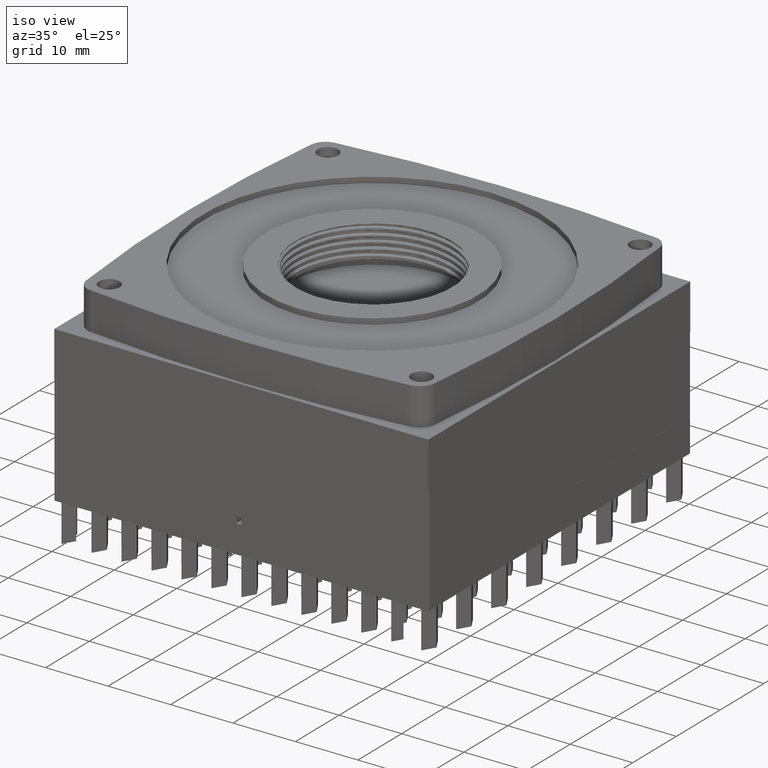
[diagram: clean part render]
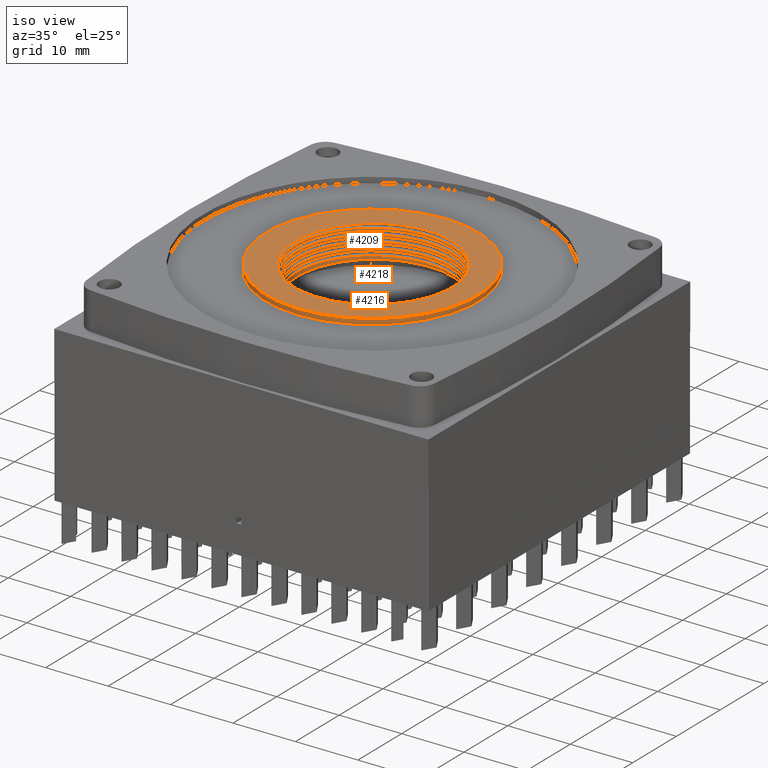
[diagram: same view with one multi-face feature highlighted, each face labeled with its STEP entity id]
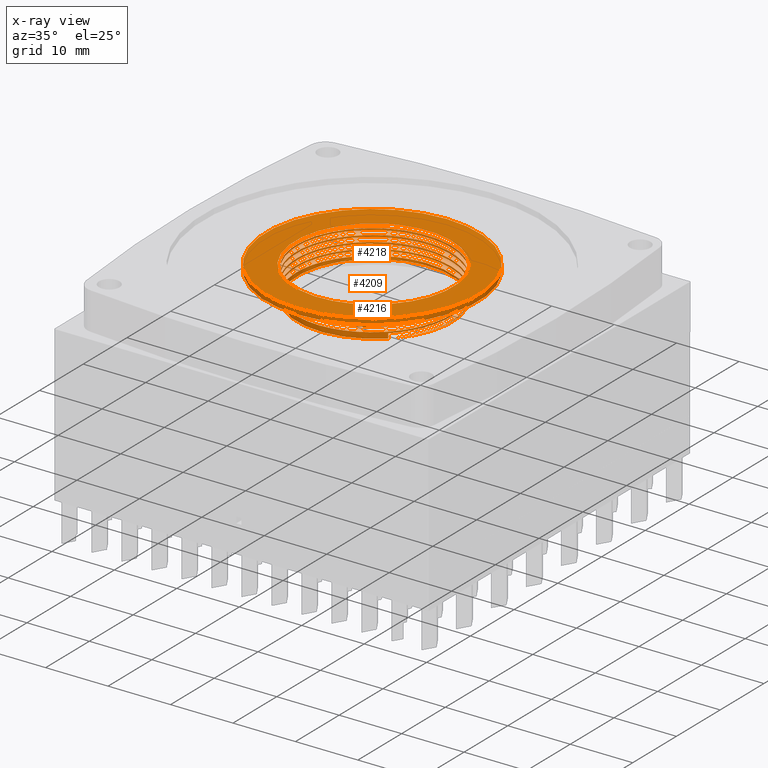
[diagram: x-ray of the same camera — body ghosted, the whole feature saturated]
A machine part, iso view. The highlighted faces form ONE feature: a stepped (counterbored) hole: 2 coaxial cylindrical walls of radii 12.4 -> 17 mm joined by 1 annular planar shoulder face(s). The faces share edges in the B-rep.
The next image is the same camera in x-ray: the body ghosted and the whole hole feature saturated, so the bore chain is visible through the body.
Their STEP definitions:
[1] entity #4216 (Cylinder):
#3198=FACE_BOUND('',#9872,.T.);
#3199=FACE_BOUND('',#9873,.T.);
#4216=ADVANCED_FACE('',(#3198,#3199),#6961,.T.);
#6961=CYLINDRICAL_SURFACE('',#51819,17.);
#9872=EDGE_LOOP('',(#25205));
#9873=EDGE_LOOP('',(#25206));
#25205=ORIENTED_EDGE('',*,*,#43849,.F.);
#25206=ORIENTED_EDGE('',*,*,#43850,.F.);
#39130=VERTEX_POINT('',#69231);
#39131=VERTEX_POINT('',#69233);
#43849=EDGE_CURVE('',#39130,#39130,#50805,.T.);
#43850=EDGE_CURVE('',#39131,#39131,#50806,.T.);
#50805=CIRCLE('',#51817,17.);
#50806=CIRCLE('',#51818,17.);
#51817=AXIS2_PLACEMENT_3D('',#69230,#55622,#55623);
#51818=AXIS2_PLACEMENT_3D('',#69232,#55624,#55625);
#51819=AXIS2_PLACEMENT_3D('',#69234,#55626,#55627);
#55622=DIRECTION('',(0.,0.,1.));
#55623=DIRECTION('',(2.04085114820801E-016,-1.,0.));
#55624=DIRECTION('',(0.,0.,-1.));
#55625=DIRECTION('',(2.04085114820801E-016,-1.,0.));
#55626=DIRECTION('',(0.,0.,-1.));
#55627=DIRECTION('',(-1.,0.,0.));
#69230=CARTESIAN_POINT('',(30.00005,30.,-5.1));
#69231=CARTESIAN_POINT('',(30.00005,13.,-5.1));
#69232=CARTESIAN_POINT('',(30.00005,30.,-6.));
#69233=CARTESIAN_POINT('',(30.00005,13.,-6.));
#69234=CARTESIAN_POINT('',(30.00005,30.,-5.1));
[2] entity #4209 (Cylinder):
#4209=ADVANCED_FACE('',(#7394),#6955,.F.);
#6955=CYLINDRICAL_SURFACE('',#51792,12.4);
#7394=FACE_OUTER_BOUND('',#9859,.T.);
#9859=EDGE_LOOP('',(#25169,#25170,#25171,#25172,#25173));
#13335=LINE('',#69174,#19216);
#19216=VECTOR('',#55563,1.);
#25099=B_SPLINE_CURVE_WITH_KNOTS('',3,(#68980,#68981,#68982,#68983,#68984,
#68985,#68986,#68987,#68988,#68989,#68990,#68991,#68992,#68993,#68994,#68995,
#68996,#68997,#68998,#68999,#69000,#69001,#69002,#69003,#69004,#69005,#69006,
#69007,#69008,#69009,#69010,#69011,#69012,#69013,#69014,#69015,#69016,#69017,
#69018,#69019,#69020,#69021,#69022,#69023,#69024,#69025,#69026,#69027,#69028,
#69029,#69030,#69031,#69032,#69033,#69034,#69035,#69036,#69037,#69038,#69039,
#69040,#69041,#69042,#69043,#69044,#69045,#69046,#69047,#69048,#69049,#69050,
#69051,#69052,#69053,#69054,#69055,#69056,#69057,#69058,#69059,#69060,#69061,
#69062,#69063,#69064,#69065,#69066,#69067,#69068,#69069,#69070,#69071,#69072,
#69073,#69074,#69075,#69076,#69077,#69078,#69079,#69080,#69081,#69082,#69083,
#69084,#69085,#69086,#69087,#69088,#69089,#69090,#69091,#69092,#69093,#69094,
#69095,#69096,#69097,#69098,#69099,#69100,#69101),.UNSPECIFIED.,.F.,.F.,
(4,2,2,2,2,2,2,2,2,2,2,2,2,2,2,2,2,2,2,2,2,2,2,2,2,2,2,2,2,2,2,2,2,2,2,
2,2,2,2,2,2,2,2,2,2,2,2,2,2,2,2,2,2,2,2,2,2,2,2,2,4),(0.,0.03125,0.0624999999999999,
0.0781249999999999,0.0937499999999999,0.109375,0.125,0.140625,0.15625,0.171875,
0.1875,0.203125,0.21875,0.234375,0.25,0.265625,0.28125,0.296875,0.3125,
0.328125,0.34375,0.359375,0.375,0.390625,0.40625,0.421875,0.4375,0.453125,
0.46875,0.484375000000001,0.500000000000001,0.515625000000001,0.531250000000001,
0.546875000000001,0.5625,0.578125,0.59375,0.609375,0.625,0.65625,0.671875,
0.6875,0.703125,0.71875,0.734375,0.75,0.765625,0.78125,0.796875,0.8125,
0.84375,0.859375,0.875,0.890625,0.90625,0.921875,0.9375,0.953125,0.96875,
0.984375,1.),.UNSPECIFIED.);
#25100=B_SPLINE_CURVE_WITH_KNOTS('',3,(#69105,#69106,#69107,#69108,#69109,
#69110,#69111,#69112,#69113,#69114,#69115,#69116,#69117,#69118,#69119,#69120,
#69121,#69122,#69123,#69124,#69125,#69126,#69127,#69128,#69129,#69130,#69131,
#69132,#69133,#69134,#69135,#69136,#69137,#69138,#69139,#69140,#69141,#69142,
#69143,#69144,#69145,#69146,#69147,#69148,#69149,#69150,#69151,#69152,#69153,
#69154,#69155,#69156,#69157,#69158,#69159,#69160,#69161,#69162,#69163,#69164,
#69165,#69166,#69167,#69168,#69169,#69170,#69171,#69172),.UNSPECIFIED.,
 .F.,.F.,(4,2,2,2,2,2,2,2,2,2,2,2,2,2,2,2,2,2,2,2,2,2,2,2,2,2,2,2,2,2,2,
2,2,4),(0.,0.03125,0.0624999999999999,0.0937499999999999,0.125,0.15625,
0.1875,0.21875,0.249999999999999,0.265624999999999,0.281249999999999,0.312499999999999,
0.343749999999999,0.374999999999999,0.406249999999999,0.437499999999999,
0.468749999999999,0.499999999999999,0.531249999999999,0.562499999999999,
0.593749999999999,0.624999999999999,0.656249999999999,0.687499999999999,
0.718749999999999,0.749999999999999,0.78125,0.8125,0.84375,0.875,0.90625,
0.9375,0.96875,1.),.UNSPECIFIED.);
#25169=ORIENTED_EDGE('',*,*,#43818,.F.);
#25170=ORIENTED_EDGE('',*,*,#43819,.T.);
#25171=ORIENTED_EDGE('',*,*,#43820,.F.);
#25172=ORIENTED_EDGE('',*,*,#43821,.T.);
#25173=ORIENTED_EDGE('',*,*,#43822,.T.);
#39103=VERTEX_POINT('',#68978);
#39104=VERTEX_POINT('',#68979);
#39105=VERTEX_POINT('',#69102);
#39106=VERTEX_POINT('',#69104);
#39107=VERTEX_POINT('',#69173);
#43818=EDGE_CURVE('',#39103,#39104,#50785,.T.);
#43819=EDGE_CURVE('',#39103,#39105,#25099,.T.);
#43820=EDGE_CURVE('',#39106,#39105,#50786,.T.);
#43821=EDGE_CURVE('',#39106,#39107,#25100,.T.);
#43822=EDGE_CURVE('',#39107,#39104,#13335,.T.);
#50785=CIRCLE('',#51790,12.4);
#50786=CIRCLE('',#51791,12.4);
#51790=AXIS2_PLACEMENT_3D('',#68977,#55559,#55560);
#51791=AXIS2_PLACEMENT_3D('',#69103,#55561,#55562);
#51792=AXIS2_PLACEMENT_3D('',#69175,#55564,#55565);
#55559=DIRECTION('',(0.,0.,-1.));
#55560=DIRECTION('',(1.,0.,0.));
#55561=DIRECTION('',(0.,0.,1.));
#55562=DIRECTION('',(1.,0.,0.));
#55563=DIRECTION('',(0.,0.,1.));
#55564=DIRECTION('',(0.,0.,1.));
#55565=DIRECTION('',(1.,0.,0.));
#68977=CARTESIAN_POINT('',(30.39645,30.,-1.));
#68978=CARTESIAN_POINT('',(39.1062380168679,38.8260745918684,-1.));
#68979=CARTESIAN_POINT('',(38.8870097555111,39.0371674233742,-1.));
#68980=CARTESIAN_POINT('',(39.106238016868,38.8260745918683,-1.));
#68981=CARTESIAN_POINT('',(42.0192839937798,35.9514089997977,-1.05192333250722));
#68982=CARTESIAN_POINT('',(43.3458151352233,31.6356991957712,-1.09818717888937));
#68983=CARTESIAN_POINT('',(41.7922018826572,23.636164026839,-1.21971024211015));
#68984=CARTESIAN_POINT('',(38.9776284102888,20.1585472320808,-1.26626202338458));
#68985=CARTESIAN_POINT('',(33.3228099463045,17.7779248350469,-1.34405553886286));
#68986=CARTESIAN_POINT('',(31.2770728349958,17.4640252871194,-1.36088154248505));
#68987=CARTESIAN_POINT('',(27.2124838421619,17.8431698997955,-1.42055530065563));
#68988=CARTESIAN_POINT('',(25.2473044679649,18.5405157533472,-1.44996822510237));
#68989=CARTESIAN_POINT('',(21.8789609335128,20.7649656789143,-1.49480626467522));
#68990=CARTESIAN_POINT('',(20.4480151202455,22.3276149184282,-1.52432418091687));
#68991=CARTESIAN_POINT('',(18.5278551531877,25.8801327983946,-1.58005155846262));
#68992=CARTESIAN_POINT('',(18.0080886167124,27.9006842343407,-1.59803216159476));
#68993=CARTESIAN_POINT('',(17.9852055161875,31.9594986118677,-1.64960813993186));
#68994=CARTESIAN_POINT('',(18.4784836276328,33.9851391737294,-1.68408202968663));
#68995=CARTESIAN_POINT('',(20.3826158978188,37.5922581134246,-1.73281141062205));
#68996=CARTESIAN_POINT('',(21.7795197243817,39.1437574126376,-1.75523747311775));
#68997=CARTESIAN_POINT('',(25.1357115786105,41.4098386604609,-1.81436710586594));
#68998=CARTESIAN_POINT('',(27.0974783036548,42.1228813462768,-1.83734333060549));
#68999=CARTESIAN_POINT('',(31.119097320848,42.5429361490388,-1.88174572459788));
#69000=CARTESIAN_POINT('',(33.2120765139354,42.2439213585939,-1.91680193757236));
#69001=CARTESIAN_POINT('',(36.9529252649203,40.7169956145318,-1.96963026374539));
#69002=CARTESIAN_POINT('',(38.6615639479343,39.4617424417295,-1.987958299122));
#69003=CARTESIAN_POINT('',(41.2363192664346,36.3508985893785,-2.04627784270394));
#69004=CARTESIAN_POINT('',(42.148920249827,34.4408630956912,-2.07495351526678));
#69005=CARTESIAN_POINT('',(42.9507689247952,30.4805188261344,-2.11854374155977));
#69006=CARTESIAN_POINT('',(42.8581851457997,28.3957054959093,-2.14799835962846));
#69007=CARTESIAN_POINT('',(41.6986976274062,24.5111201262275,-2.20548039817715));
#69008=CARTESIAN_POINT('',(40.6360892904812,22.7151919411691,-2.22440507886243));
#69009=CARTESIAN_POINT('',(37.7638004888454,19.8195880226936,-2.2764115931904));
#69010=CARTESIAN_POINT('',(35.9766881424372,18.7425638376474,-2.30977735020438));
#69011=CARTESIAN_POINT('',(32.1014606510897,17.5516320204042,-2.35660188469822));
#69012=CARTESIAN_POINT('',(30.0173726583458,17.4422272547514,-2.37879405377946));
#69013=CARTESIAN_POINT('',(26.0508990556591,18.2119745952767,-2.4390500686795));
#69014=CARTESIAN_POINT('',(24.1334624425527,19.1090878339114,-2.46344803273869));
#69015=CARTESIAN_POINT('',(21.0017860613854,21.6587009144443,-2.50861409945409));
#69016=CARTESIAN_POINT('',(19.7469532669035,23.3291405954021,-2.54260039265908));
#69017=CARTESIAN_POINT('',(18.1722040775725,27.087963342923,-2.59419391709152));
#69018=CARTESIAN_POINT('',(17.8589228531942,29.1412827371226,-2.61116169364418));
#69019=CARTESIAN_POINT('',(18.2452722786515,33.2055985835191,-2.6709147953577));
#69020=CARTESIAN_POINT('',(18.9445954502962,35.1657217623279,-2.70018222745976));
#69021=CARTESIAN_POINT('',(21.1726379828697,38.5294164997379,-2.74497174768878));
#69022=CARTESIAN_POINT('',(22.7049373270776,39.9380815127881,-2.77402389292097));
#69023=CARTESIAN_POINT('',(26.2955714457948,41.8788731130611,-2.83034966687348));
#69024=CARTESIAN_POINT('',(28.3094294120775,42.3917090395988,-2.84810002185425));
#69025=CARTESIAN_POINT('',(32.383759181919,42.4080905086942,-2.90005078195512));
#69026=CARTESIAN_POINT('',(34.411915829171,41.9043496880052,-2.93450173519589));
#69027=CARTESIAN_POINT('',(37.9814266845353,40.0152701418686,-2.98270296330489));
#69028=CARTESIAN_POINT('',(39.5552246054624,38.5999437661633,-3.00557856804444));
#69029=CARTESIAN_POINT('',(41.8115376626584,35.2476622136584,-3.06455528167655));
#69030=CARTESIAN_POINT('',(42.5299597343882,33.2613668938105,-3.08770536549946));
#69031=CARTESIAN_POINT('',(42.9371895129411,29.2329113746806,-3.13229063527832));
#69032=CARTESIAN_POINT('',(42.6334556143691,27.1499146169295,-3.16732680687811));
#69033=CARTESIAN_POINT('',(41.0893133960334,23.4022757339624,-3.22017375951116));
#69034=CARTESIAN_POINT('',(39.8488272928097,21.7238398340011,-3.23814269038864));
#69035=CARTESIAN_POINT('',(36.7326062860103,19.1512495144305,-3.29654533020678));
#69036=CARTESIAN_POINT('',(34.8507288724674,18.2490194047476,-3.32481305191368));
#69037=CARTESIAN_POINT('',(30.8492095535431,17.4412917061354,-3.36884205322087));
#69038=CARTESIAN_POINT('',(28.7743383631108,17.5389246468469,-3.39828998425261));
#69039=CARTESIAN_POINT('',(24.8729795239462,18.712798441613,-3.45596389779514));
#69040=CARTESIAN_POINT('',(23.0856833763778,19.7832075020616,-3.47479342830082));
#69041=CARTESIAN_POINT('',(20.2239633970378,22.6277090478229,-3.5263476205904));
#69042=CARTESIAN_POINT('',(19.1285363118328,24.4444882942313,-3.56011487046309));
#69043=CARTESIAN_POINT('',(17.9486027590894,28.3027409555776,-3.60665647009624));
#69044=CARTESIAN_POINT('',(17.8353112812934,30.3808206784443,-3.62882244054063));
#69045=CARTESIAN_POINT('',(18.6202919577314,34.3874060745769,-3.68968398094425));
#69046=CARTESIAN_POINT('',(19.5010243589048,36.262718171745,-3.71338816921219));
#69047=CARTESIAN_POINT('',(22.0853455982663,39.4264246892882,-3.75912869988844));
#69048=CARTESIAN_POINT('',(23.7604895941291,40.6677400935687,-3.79313425122073));
#69049=CARTESIAN_POINT('',(27.4875732522155,42.2219100503325,-3.84418189090674));
#69050=CARTESIAN_POINT('',(29.5500022640636,42.5364555909467,-3.86134099934501));
#69051=CARTESIAN_POINT('',(33.5909268917546,42.1521401383253,-3.92075236530364));
#69052=CARTESIAN_POINT('',(35.5695155725488,41.4502644539155,-3.95027305029885));
#69053=CARTESIAN_POINT('',(38.9464683029603,39.2068643142784,-3.99525309398047));
#69054=CARTESIAN_POINT('',(40.3582966015234,37.6564199493569,-4.02465197532736));
#69055=CARTESIAN_POINT('',(42.2762478076601,34.0901782604561,-4.08043893019678));
#69056=CARTESIAN_POINT('',(42.7917786830368,32.0734447590444,-4.09817574342636));
#69057=CARTESIAN_POINT('',(42.8056969329359,25.9374914308136,-4.17670744782093));
#69058=CARTESIAN_POINT('',(40.6978464520902,21.9869432722972,-4.22563868796366));
#69059=CARTESIAN_POINT('',(35.6331061140866,18.5772422555265,-4.31475201587606));
#69060=CARTESIAN_POINT('',(33.6684356142597,17.8680726731944,-4.33759201429051));
#69061=CARTESIAN_POINT('',(29.6248866291021,17.4582999363123,-4.38233599386976));
#69062=CARTESIAN_POINT('',(27.5527518616611,17.7623988417349,-4.41722593078579));
#69063=CARTESIAN_POINT('',(23.8136393008777,19.2989671288102,-4.46997420301289));
#69064=CARTESIAN_POINT('',(22.1139497398053,20.5526527429472,-4.4882430765329));
#69065=CARTESIAN_POINT('',(19.5408459277578,23.6748090161493,-4.54674468935885));
#69066=CARTESIAN_POINT('',(18.6433810871056,25.5593562910441,-4.57495919297968));
#69067=CARTESIAN_POINT('',(17.841408252846,29.5257931375915,-4.61860994692324));
#69068=CARTESIAN_POINT('',(17.9335953937511,31.6116278210335,-4.64812671817953));
#69069=CARTESIAN_POINT('',(19.1064281027238,35.5186497197279,-4.70590088348335));
#69070=CARTESIAN_POINT('',(20.1743567189316,37.3072458852602,-4.72468145604278));
#69071=CARTESIAN_POINT('',(23.0404787015067,40.1870859292665,-4.77665936174455));
#69072=CARTESIAN_POINT('',(24.8277341265173,41.2615934752526,-4.80992488540659));
#69073=CARTESIAN_POINT('',(28.6868424522321,42.4463378595491,-4.85653801412516));
#69074=CARTESIAN_POINT('',(30.8040583694231,42.5564670796174,-4.87922970496029));
#69075=CARTESIAN_POINT('',(34.7639001986585,41.7794901785509,-4.93938049376809));
#69076=CARTESIAN_POINT('',(36.6506921307923,40.9005967233305,-4.96328858234198));
#69077=CARTESIAN_POINT('',(39.8186190409479,38.316326359581,-5.00904430556626));
#69078=CARTESIAN_POINT('',(41.0540720556514,36.6602132623388,-5.04280200253696));
#69079=CARTESIAN_POINT('',(43.4156503999314,30.9969028388936,-5.12036919960744));
#69080=CARTESIAN_POINT('',(42.9800796367669,26.5397454393216,-5.17746855759616));
#69081=CARTESIAN_POINT('',(39.6069439314868,21.4520718502641,-5.24522044431413));
#69082=CARTESIAN_POINT('',(38.0627867824931,20.044364845695,-5.27448262996076));
#69083=CARTESIAN_POINT('',(34.4850152398999,18.1184586325122,-5.33047834551898));
#69084=CARTESIAN_POINT('',(32.4538764353382,17.6059169807392,-5.34841592587341));
#69085=CARTESIAN_POINT('',(28.4109749874374,17.5941873946264,-5.40008926127096));
#69086=CARTESIAN_POINT('',(26.361565207357,18.1015514602522,-5.43478203883545));
#69087=CARTESIAN_POINT('',(22.7887629122932,20.0011765632917,-5.48299134260627));
#69088=CARTESIAN_POINT('',(21.2383389707073,21.39876194869,-5.50555825587331));
#69089=CARTESIAN_POINT('',(18.97951980761,24.7553838441454,-5.56460641151356));
#69090=CARTESIAN_POINT('',(18.2660536703844,26.7176133669441,-5.58748081161375));
#69091=CARTESIAN_POINT('',(17.8538008952743,30.7762284187902,-5.63238373053351));
#69092=CARTESIAN_POINT('',(18.155478828747,32.8367663629578,-5.66713091698812));
#69093=CARTESIAN_POINT('',(19.7010269282316,36.5951909698918,-5.72014607560079));
#69094=CARTESIAN_POINT('',(20.9408859490018,38.2719689819509,-5.73807872966594));
#69095=CARTESIAN_POINT('',(24.0521014055142,40.8435420076898,-5.79639601468566));
#69096=CARTESIAN_POINT('',(25.9659102343953,41.7559041196683,-5.82507502302889));
#69097=CARTESIAN_POINT('',(29.9215066021483,42.5540986555896,-5.86859719446792));
#69098=CARTESIAN_POINT('',(32.0001128486788,42.4647022704273,-5.89803350703133));
#69099=CARTESIAN_POINT('',(35.9170239195626,41.28998675027,-5.95581554176364));
#69100=CARTESIAN_POINT('',(37.6917775214695,40.2335386554555,-5.97412521089449));
#69101=CARTESIAN_POINT('',(39.1423492365135,38.7902927451111,-6.));
#69102=CARTESIAN_POINT('',(39.1423492365135,38.7902927451111,-6.));
#69103=CARTESIAN_POINT('',(30.39645,30.,-6.));
#69104=CARTESIAN_POINT('',(39.1062380168679,21.1739254081316,-6.));
#69105=CARTESIAN_POINT('',(39.1062380168647,21.1739254081285,-6.00000000000002));
#69106=CARTESIAN_POINT('',(41.5847094759408,23.6197421514271,-5.95582270286881));
#69107=CARTESIAN_POINT('',(42.9384816752776,27.0819615656183,-5.91618066647406));
#69108=CARTESIAN_POINT('',(42.6299289678624,34.0198879575261,-5.8196034956956));
#69109=CARTESIAN_POINT('',(40.9739306419579,37.3444509524674,-5.78295124588053));
#69110=CARTESIAN_POINT('',(35.619724524444,41.7703636208269,-5.68258980224309));
#69111=CARTESIAN_POINT('',(32.0009989907755,42.7734981783447,-5.651047925638));
#69112=CARTESIAN_POINT('',(25.1543453018634,41.7582809759654,-5.54759686783825));
#69113=CARTESIAN_POINT('',(21.9998367668724,39.7596576097077,-5.51460352185017));
#69114=CARTESIAN_POINT('',(18.1578643745296,33.9963799035487,-5.4136551894466));
#69115=CARTESIAN_POINT('',(17.5335124663792,30.3093992956757,-5.38121584889278));
#69116=CARTESIAN_POINT('',(19.2066122908278,23.648746426068,-5.28100055980452));
#69117=CARTESIAN_POINT('',(21.5403010819263,20.6663580032278,-5.24383929904139));
#69118=CARTESIAN_POINT('',(27.6022272106594,17.4405188966049,-5.14956893891139));
#69119=CARTESIAN_POINT('',(31.380248997577,17.1711978783002,-5.11003315307814));
#69120=CARTESIAN_POINT('',(37.8380201175798,19.5038550633813,-5.01703414310029));
#69121=CARTESIAN_POINT('',(40.576856027214,22.1308884483581,-4.97335112298333));
#69122=CARTESIAN_POINT('',(42.5254146397343,26.9017565233096,-4.90862205219174));
#69123=CARTESIAN_POINT('',(42.8440877054528,28.64660872633,-4.89388108375338));
#69124=CARTESIAN_POINT('',(42.7370253783175,32.1179121128883,-4.84655150325559));
#69125=CARTESIAN_POINT('',(42.3080452729578,33.8502445009459,-4.81810646506787));
#69126=CARTESIAN_POINT('',(40.0653159759227,38.4896978388458,-4.7544533777861));
#69127=CARTESIAN_POINT('',(37.2175734484058,40.917266957249,-4.70467211755784));
#69128=CARTESIAN_POINT('',(30.5844594853844,42.8716391865076,-4.62563567251138));
#69129=CARTESIAN_POINT('',(26.8720597416096,42.3805491614469,-4.57157488792356));
#69130=CARTESIAN_POINT('',(20.9772894305261,38.7737528115915,-4.49325854242297));
#69131=CARTESIAN_POINT('',(18.8493236535823,35.687611022619,-4.43852794720031));
#69132=CARTESIAN_POINT('',(17.5716425627496,28.900290855636,-4.36431708690827));
#69133=CARTESIAN_POINT('',(18.4216506779629,25.2660878095435,-4.3068573552611));
#69134=CARTESIAN_POINT('',(22.6190577133684,19.7375484093781,-4.23040613870512));
#69135=CARTESIAN_POINT('',(25.8995763775506,17.9424069159449,-4.17643439779871));
#69136=CARTESIAN_POINT('',(32.7580294849593,17.3496891068578,-4.09957262709331));
#69137=CARTESIAN_POINT('',(36.3228287697999,18.5765639309243,-4.04598665862915));
#69138=CARTESIAN_POINT('',(41.3644467286646,23.267994005692,-3.96300085913918));
#69139=CARTESIAN_POINT('',(42.8443688201434,26.7325466865479,-3.91858567907782));
#69140=CARTESIAN_POINT('',(42.7460034555288,33.6215277932811,-3.82736424895295));
#69141=CARTESIAN_POINT('',(41.1795626027317,37.0237779439112,-3.78693113805541));
#69142=CARTESIAN_POINT('',(36.0159577441193,41.577137242097,-3.68991503881059));
#69143=CARTESIAN_POINT('',(32.4176428673036,42.7088251835164,-3.65653825098908));
#69144=CARTESIAN_POINT('',(25.5797987261804,41.9331189828322,-3.55474713926631));
#69145=CARTESIAN_POINT('',(22.3249262404452,40.0220516216292,-3.5208363212516));
#69146=CARTESIAN_POINT('',(18.3155345960788,34.4319857300038,-3.41984590239172));
#69147=CARTESIAN_POINT('',(17.541228342401,30.7405765050396,-3.38809886313108));
#69148=CARTESIAN_POINT('',(19.0245624854041,23.959689430071,-3.28532826057025));
#69149=CARTESIAN_POINT('',(21.237862542089,20.9551440621666,-3.25058229858826));
#69150=CARTESIAN_POINT('',(27.2325325401386,17.5228701430357,-3.15349475636244));
#69151=CARTESIAN_POINT('',(30.9601722270022,17.1397515938822,-3.11685280360281));
#69152=CARTESIAN_POINT('',(37.5307103116519,19.2852390777087,-3.02077074255107));
#69153=CARTESIAN_POINT('',(40.3120902664885,21.7902672692984,-2.97990840330512));
#69154=CARTESIAN_POINT('',(43.1297028829648,28.1068797126355,-2.89054247390467));
#69155=CARTESIAN_POINT('',(43.1299617671012,31.8484488048874,-2.84635019392189));
#69156=CARTESIAN_POINT('',(40.363865933343,38.1369345898155,-2.75860818808649));
#69157=CARTESIAN_POINT('',(37.570862360828,40.6833780161185,-2.71065781502171));
#69158=CARTESIAN_POINT('',(31.0378318846501,42.8528357896819,-2.62946386362002));
#69159=CARTESIAN_POINT('',(27.285622295726,42.4875695213996,-2.57734283114123));
#69160=CARTESIAN_POINT('',(21.2922133213077,39.0955767302475,-2.49719518890084));
#69161=CARTESIAN_POINT('',(19.0331769080719,36.0406597579733,-2.44310205492779));
#69162=CARTESIAN_POINT('',(17.5454680692816,29.3174979196469,-2.36823497693691));
#69163=CARTESIAN_POINT('',(18.285877973206,25.6460509505366,-2.31105787402353));
#69164=CARTESIAN_POINT('',(22.2662095452603,20.0239277624105,-2.23529095462407));
#69165=CARTESIAN_POINT('',(25.5046329540061,18.0969417393803,-2.17990155067115));
#69166=CARTESIAN_POINT('',(32.341391193996,17.2787628856671,-2.10508146475876));
#69167=CARTESIAN_POINT('',(35.9452333501591,18.3890573770476,-2.04895964456302));
#69168=CARTESIAN_POINT('',(41.1354607124646,22.9093981794162,-1.96963596560849));
#69169=CARTESIAN_POINT('',(42.7279028002005,26.2930836192829,-1.92118164447042));
#69170=CARTESIAN_POINT('',(42.8604738772802,33.2332748110532,-1.83536194888224));
#69171=CARTESIAN_POINT('',(41.4247006488471,36.652967246319,-1.79106444536181));
#69172=CARTESIAN_POINT('',(38.8870097555111,39.0371674233742,-1.74383775862185));
#69173=CARTESIAN_POINT('',(38.8870097555111,39.0371674233742,-1.74383775862185));
#69174=CARTESIAN_POINT('',(38.8870097555111,39.0371674233742,-6.));
#69175=CARTESIAN_POINT('',(30.39645,30.,-6.));
[3] entity #4218 (Plane):
#945=PLANE('',#51822);
#3202=FACE_BOUND('',#9876,.T.);
#3203=FACE_BOUND('',#9877,.T.);
#4218=ADVANCED_FACE('',(#3202,#3203),#945,.T.);
#9876=EDGE_LOOP('',(#25209,#25210,#25211,#25212));
#9877=EDGE_LOOP('',(#25213));
#25101=B_SPLINE_CURVE_WITH_KNOTS('',3,(#69236,#69237,#69238,#69239,#69240,
#69241),.UNSPECIFIED.,.F.,.F.,(4,2,4),(0.,0.5,1.),.UNSPECIFIED.);
#25102=B_SPLINE_CURVE_WITH_KNOTS('',3,(#69245,#69246,#69247,#69248,#69249,
#69250),.UNSPECIFIED.,.F.,.F.,(4,2,4),(0.,0.5,1.),.UNSPECIFIED.);
#25209=ORIENTED_EDGE('',*,*,#43851,.F.);
#25210=ORIENTED_EDGE('',*,*,#43852,.F.);
#25211=ORIENTED_EDGE('',*,*,#43853,.F.);
#25212=ORIENTED_EDGE('',*,*,#43820,.T.);
#25213=ORIENTED_EDGE('',*,*,#43850,.T.);
#39105=VERTEX_POINT('',#69102);
#39106=VERTEX_POINT('',#69104);
#39131=VERTEX_POINT('',#69233);
#39132=VERTEX_POINT('',#69242);
#39133=VERTEX_POINT('',#69244);
#43820=EDGE_CURVE('',#39106,#39105,#50786,.T.);
#43850=EDGE_CURVE('',#39131,#39131,#50806,.T.);
#43851=EDGE_CURVE('',#39132,#39105,#25101,.T.);
#43852=EDGE_CURVE('',#39133,#39132,#50807,.T.);
#43853=EDGE_CURVE('',#39106,#39133,#25102,.T.);
#50786=CIRCLE('',#51791,12.4);
#50806=CIRCLE('',#51818,17.);
#50807=CIRCLE('',#51821,12.765);
#51791=AXIS2_PLACEMENT_3D('',#69103,#55561,#55562);
#51818=AXIS2_PLACEMENT_3D('',#69232,#55624,#55625);
#51821=AXIS2_PLACEMENT_3D('',#69243,#55630,#55631);
#51822=AXIS2_PLACEMENT_3D('',#69251,#55632,#55633);
#55561=DIRECTION('',(0.,0.,1.));
#55562=DIRECTION('',(1.,0.,0.));
#55624=DIRECTION('',(0.,0.,-1.));
#55625=DIRECTION('',(2.04085114820801E-016,-1.,0.));
#55630=DIRECTION('',(0.,0.,-1.));
#55631=DIRECTION('',(-1.,0.,0.));
#55632=DIRECTION('',(0.,0.,-1.));
#55633=DIRECTION('',(-1.,0.,0.));
#69102=CARTESIAN_POINT('',(39.1423492365135,38.7902927451111,-6.));
#69103=CARTESIAN_POINT('',(30.39645,30.,-6.));
#69104=CARTESIAN_POINT('',(39.1062380168679,21.1739254081316,-6.));
#69232=CARTESIAN_POINT('',(30.00005,30.,-6.));
#69233=CARTESIAN_POINT('',(30.00005,13.,-6.));
#69236=CARTESIAN_POINT('',(23.7050915513946,40.8706461221165,-6.));
#69237=CARTESIAN_POINT('',(26.132522840245,42.2897334581216,-6.));
#69238=CARTESIAN_POINT('',(29.0148230629768,42.8799290789525,-6.));
#69239=CARTESIAN_POINT('',(34.5212784079544,42.1398522444504,-6.));
#69240=CARTESIAN_POINT('',(37.2096625543264,40.7995057355263,-6.));
#69241=CARTESIAN_POINT('',(39.1423492365135,38.7902927451111,-6.));
#69242=CARTESIAN_POINT('',(23.7050915513947,40.8706461221162,-5.99999999999979));
#69243=CARTESIAN_POINT('',(30.39645,30.,-6.));
#69244=CARTESIAN_POINT('',(23.705091551409,19.129353877875,-6.));
#69245=CARTESIAN_POINT('',(39.1062380168679,21.1739254081316,-6.));
#69246=CARTESIAN_POINT('',(37.1503237010323,19.1567148690709,-6.));
#69247=CARTESIAN_POINT('',(34.5083286718164,17.8569215131996,-6.));
#69248=CARTESIAN_POINT('',(29.0144599137514,17.1215175155593,-6.));
#69249=CARTESIAN_POINT('',(26.1294806924704,17.712044995263,-6.));
#69250=CARTESIAN_POINT('',(23.705091551409,19.129353877875,-6.));
#69251=CARTESIAN_POINT('',(124.646450000029,-64.2499999999964,-6.));